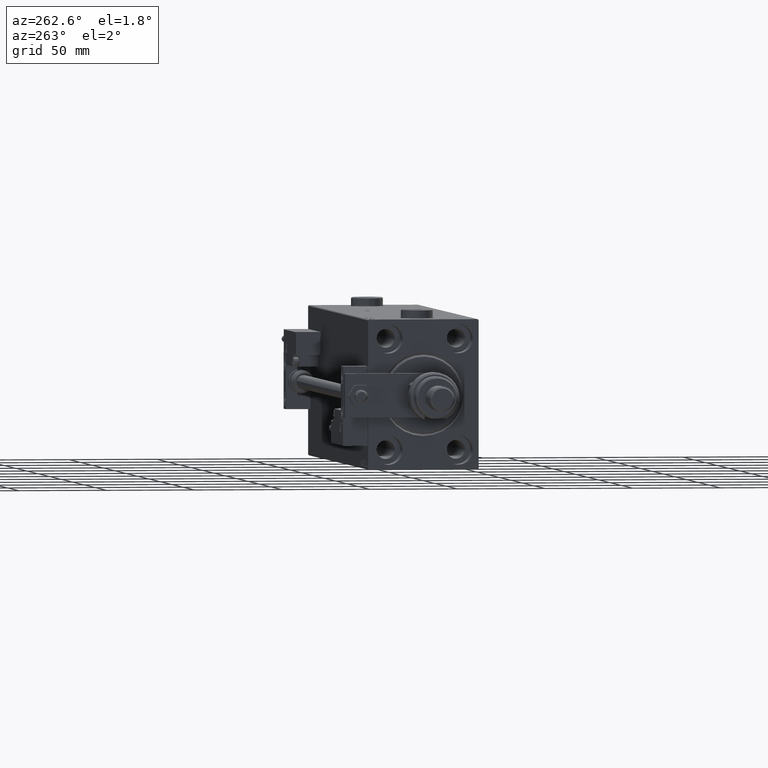
[diagram: clean part render]
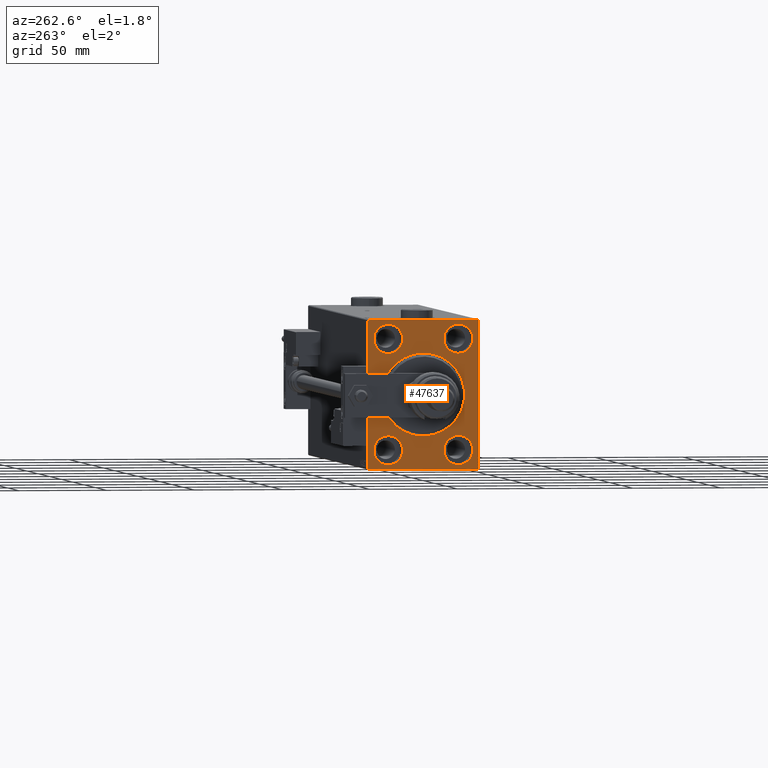
[diagram: same view with one face highlighted and labeled with its STEP entity id]
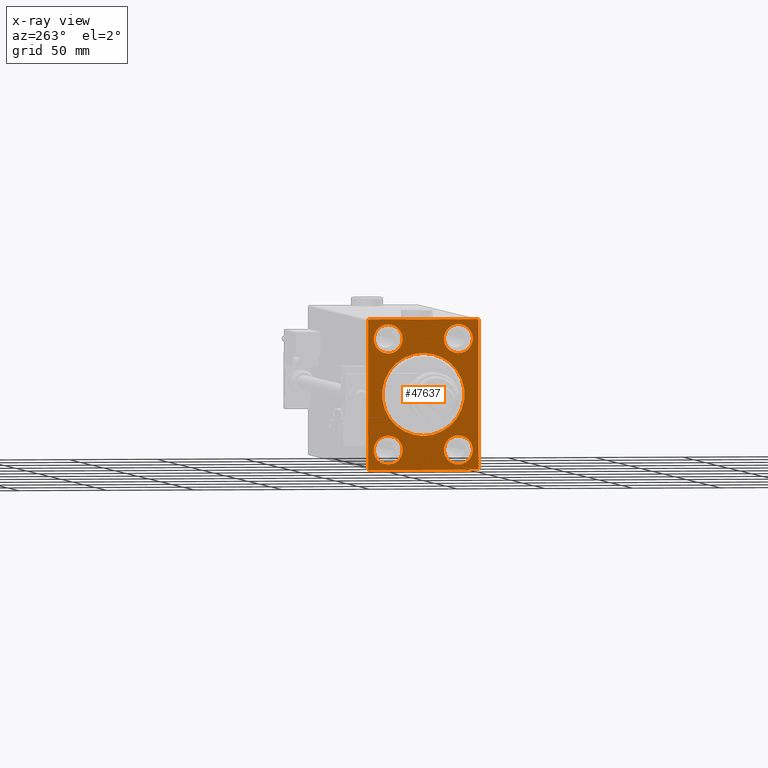
[diagram: x-ray of the same camera — body ghosted, the highlighted face saturated]
A machine part, auxiliary view. The second image highlights one B-rep face of the part: STEP entity #47637.
The next image is the same camera in x-ray: the body ghosted, the highlighted face saturated — about 0% of this face is hidden behind the body in this view.
In plain terms, the highlighted planar face has unit normal (1, 0, 0).
Its self-contained STEP definition (entity closure, byte-faithful):
#286 = ORIENTED_EDGE ( 'NONE', *, *, #8808, .F. ) ;
#410 = DIRECTION ( 'NONE',  ( 0.000000000000000000, 0.000000000000000000, -1.000000000000000000 ) ) ;
#532 = VERTEX_POINT ( 'NONE', #26069 ) ;
#922 = ORIENTED_EDGE ( 'NONE', *, *, #51934, .T. ) ;
#1520 = EDGE_CURVE ( 'NONE', #8703, #42177, #11086, .T. ) ;
#1560 = DIRECTION ( 'NONE',  ( -1.000000000000000000, 0.000000000000000000, 0.000000000000000000 ) ) ;
#1852 = EDGE_LOOP ( 'NONE', ( #50667, #25114 ) ) ;
#2113 = DIRECTION ( 'NONE',  ( -1.000000000000000000, 0.000000000000000000, 0.000000000000000000 ) ) ;
#2393 = VERTEX_POINT ( 'NONE', #3334 ) ;
#2554 = EDGE_LOOP ( 'NONE', ( #286, #15522 ) ) ;
#3334 = CARTESIAN_POINT ( 'NONE',  ( 0.000000000000000000, -19.99999999999999645, 23.25000000000000355 ) ) ;
#4461 = LINE ( 'NONE', #29740, #46378 ) ;
#4735 = ORIENTED_EDGE ( 'NONE', *, *, #20302, .F. ) ;
#4921 = VECTOR ( 'NONE', #33680, 1000.000000000000000 ) ;
#5977 = DIRECTION ( 'NONE',  ( 0.000000000000000000, 0.000000000000000000, -1.000000000000000000 ) ) ;
#6416 = DIRECTION ( 'NONE',  ( 0.000000000000000000, 0.000000000000000000, 1.000000000000000000 ) ) ;
#6716 = FACE_BOUND ( 'NONE', #11679, .T. ) ;
#6831 = DIRECTION ( 'NONE',  ( -1.000000000000000000, 0.000000000000000000, 0.000000000000000000 ) ) ;
#7261 = DIRECTION ( 'NONE',  ( 1.000000000000000000, 0.000000000000000000, 0.000000000000000000 ) ) ;
#7525 = CARTESIAN_POINT ( 'NONE',  ( 0.000000000000000000, 31.50000000000001421, -42.50000000000000711 ) ) ;
#8110 = DIRECTION ( 'NONE',  ( -1.000000000000000000, 0.000000000000000000, 0.000000000000000000 ) ) ;
#8406 = CARTESIAN_POINT ( 'NONE',  ( 0.000000000000000000, 0.000000000000000000, 0.000000000000000000 ) ) ;
#8474 = CARTESIAN_POINT ( 'NONE',  ( 0.000000000000000000, -20.00000000000000355, -39.74999999999999289 ) ) ;
#8703 = VERTEX_POINT ( 'NONE', #38984 ) ;
#8808 = EDGE_CURVE ( 'NONE', #25240, #16072, #53788, .T. ) ;
#8832 = CARTESIAN_POINT ( 'NONE',  ( 0.000000000000000000, -19.99999999999999645, 31.50000000000000000 ) ) ;
#9127 = VECTOR ( 'NONE', #25829, 1000.000000000000000 ) ;
#9532 = EDGE_CURVE ( 'NONE', #16072, #25240, #47688, .T. ) ;
#9657 = ORIENTED_EDGE ( 'NONE', *, *, #42791, .T. ) ;
#9817 = DIRECTION ( 'NONE',  ( 0.000000000000000000, 0.000000000000000000, 1.000000000000000000 ) ) ;
#11086 = CIRCLE ( 'NONE', #29391, 23.50000000000004619 ) ;
#11135 = CARTESIAN_POINT ( 'NONE',  ( 0.000000000000000000, 30.99999999999998579, -42.50000000000000711 ) ) ;
#11679 = EDGE_LOOP ( 'NONE', ( #28223, #47157 ) ) ;
#11831 = AXIS2_PLACEMENT_3D ( 'NONE', #30431, #1560, #9817 ) ;
#11919 = DIRECTION ( 'NONE',  ( 0.000000000000000000, -1.632680918566406300E-16, 1.000000000000000000 ) ) ;
#11950 = ORIENTED_EDGE ( 'NONE', *, *, #1520, .T. ) ;
#12266 = EDGE_CURVE ( 'NONE', #17935, #49722, #16098, .T. ) ;
#13168 = DIRECTION ( 'NONE',  ( 1.000000000000000000, 0.000000000000000000, 0.000000000000000000 ) ) ;
#13487 = DIRECTION ( 'NONE',  ( 0.000000000000000000, 0.000000000000000000, 1.000000000000000000 ) ) ;
#13886 = CIRCLE ( 'NONE', #48975, 8.250000000000000000 ) ;
#15225 = FACE_OUTER_BOUND ( 'NONE', #18866, .T. ) ;
#15522 = ORIENTED_EDGE ( 'NONE', *, *, #9532, .F. ) ;
#16072 = VERTEX_POINT ( 'NONE', #50246 ) ;
#16098 = LINE ( 'NONE', #49369, #29326 ) ;
#17152 = EDGE_CURVE ( 'NONE', #28021, #43437, #38154, .T. ) ;
#17236 = CIRCLE ( 'NONE', #47962, 8.249999999999992895 ) ;
#17386 = EDGE_CURVE ( 'NONE', #42177, #8703, #33792, .T. ) ;
#17868 = DIRECTION ( 'NONE',  ( -1.000000000000000000, 0.000000000000000000, 0.000000000000000000 ) ) ;
#17935 = VERTEX_POINT ( 'NONE', #37868 ) ;
#18866 = EDGE_LOOP ( 'NONE', ( #19171, #30527, #45164, #922, #32689, #9657, #4735, #50330 ) ) ;
#18925 = DIRECTION ( 'NONE',  ( -0.000000000000000000, 0.7071067811865671127, -0.7071067811865279218 ) ) ;
#19171 = ORIENTED_EDGE ( 'NONE', *, *, #20191, .F. ) ;
#19172 = CIRCLE ( 'NONE', #39343, 8.249999999999992895 ) ;
#19487 = ORIENTED_EDGE ( 'NONE', *, *, #38000, .F. ) ;
#20191 = EDGE_CURVE ( 'NONE', #38014, #49722, #26585, .T. ) ;
#20267 = DIRECTION ( 'NONE',  ( -1.000000000000000000, 0.000000000000000000, 0.000000000000000000 ) ) ;
#20302 = EDGE_CURVE ( 'NONE', #17935, #22200, #37819, .T. ) ;
#20400 = ORIENTED_EDGE ( 'NONE', *, *, #17152, .F. ) ;
#20627 = EDGE_CURVE ( 'NONE', #40886, #2393, #17236, .T. ) ;
#21535 = CARTESIAN_POINT ( 'NONE',  ( 0.000000000000000000, -20.00000000000000355, -31.49999999999999289 ) ) ;
#21807 = VERTEX_POINT ( 'NONE', #27135 ) ;
#21851 = AXIS2_PLACEMENT_3D ( 'NONE', #21535, #8110, #25934 ) ;
#22200 = VERTEX_POINT ( 'NONE', #11135 ) ;
#22442 = AXIS2_PLACEMENT_3D ( 'NONE', #27393, #2113, #44163 ) ;
#22709 = AXIS2_PLACEMENT_3D ( 'NONE', #49028, #7261, #23737 ) ;
#23310 = CARTESIAN_POINT ( 'NONE',  ( 0.000000000000000000, 20.00000000000000355, 31.50000000000000000 ) ) ;
#23737 = DIRECTION ( 'NONE',  ( 0.000000000000000000, 0.000000000000000000, -1.000000000000000000 ) ) ;
#24011 = FACE_BOUND ( 'NONE', #2554, .T. ) ;
#24390 = CARTESIAN_POINT ( 'NONE',  ( 0.000000000000000000, 20.00000000000000355, 31.50000000000000000 ) ) ;
#24999 = AXIS2_PLACEMENT_3D ( 'NONE', #8406, #29814, #410 ) ;
#25114 = ORIENTED_EDGE ( 'NONE', *, *, #45593, .F. ) ;
#25166 = VERTEX_POINT ( 'NONE', #27129 ) ;
#25240 = VERTEX_POINT ( 'NONE', #45548 ) ;
#25829 = DIRECTION ( 'NONE',  ( 0.000000000000000000, -1.000000000000000000, -2.202823461557850341E-16 ) ) ;
#25934 = DIRECTION ( 'NONE',  ( 0.000000000000000000, 0.000000000000000000, 1.000000000000000000 ) ) ;
#26069 = CARTESIAN_POINT ( 'NONE',  ( 0.000000000000000000, 30.99999999999991473, 42.50000000000000711 ) ) ;
#26161 = CARTESIAN_POINT ( 'NONE',  ( 0.000000000000000000, 2.877919977996285448E-15, -23.50000000000004619 ) ) ;
#26213 = CIRCLE ( 'NONE', #21851, 8.250000000000000000 ) ;
#26451 = EDGE_CURVE ( 'NONE', #25166, #52093, #26213, .T. ) ;
#26585 = LINE ( 'NONE', #52424, #28620 ) ;
#27129 = CARTESIAN_POINT ( 'NONE',  ( 0.000000000000000000, -20.00000000000000355, -23.24999999999999289 ) ) ;
#27135 = CARTESIAN_POINT ( 'NONE',  ( 0.000000000000000000, -30.99999999999997158, 42.49999999999999289 ) ) ;
#27393 = CARTESIAN_POINT ( 'NONE',  ( 0.000000000000000000, 19.99999999999999645, -31.49999999999999289 ) ) ;
#27443 = LINE ( 'NONE', #44492, #29026 ) ;
#28021 = VERTEX_POINT ( 'NONE', #29072 ) ;
#28223 = ORIENTED_EDGE ( 'NONE', *, *, #20627, .F. ) ;
#28620 = VECTOR ( 'NONE', #5977, 1000.000000000000000 ) ;
#29026 = VECTOR ( 'NONE', #18925, 1000.000000000000000 ) ;
#29072 = CARTESIAN_POINT ( 'NONE',  ( 0.000000000000000000, 19.99999999999999645, -23.24999999999999289 ) ) ;
#29326 = VECTOR ( 'NONE', #32323, 1000.000000000000114 ) ;
#29391 = AXIS2_PLACEMENT_3D ( 'NONE', #34051, #13168, #37911 ) ;
#29740 = CARTESIAN_POINT ( 'NONE',  ( 0.000000000000000000, -31.50000000000000000, 41.99999999999996447 ) ) ;
#29814 = DIRECTION ( 'NONE',  ( 1.000000000000000000, 0.000000000000000000, 0.000000000000000000 ) ) ;
#29966 = LINE ( 'NONE', #46733, #9127 ) ;
#29973 = EDGE_CURVE ( 'NONE', #532, #21807, #29966, .T. ) ;
#30431 = CARTESIAN_POINT ( 'NONE',  ( 0.000000000000000000, 19.99999999999999645, -31.49999999999999289 ) ) ;
#30527 = ORIENTED_EDGE ( 'NONE', *, *, #46767, .T. ) ;
#30683 = EDGE_LOOP ( 'NONE', ( #20400, #19487 ) ) ;
#31252 = CARTESIAN_POINT ( 'NONE',  ( 0.000000000000000000, -31.50000000000000000, 41.99999999999996447 ) ) ;
#31694 = DIRECTION ( 'NONE',  ( -1.000000000000000000, 0.000000000000000000, 0.000000000000000000 ) ) ;
#31965 = CARTESIAN_POINT ( 'NONE',  ( 0.000000000000000000, -20.00000000000000355, -31.49999999999999289 ) ) ;
#32323 = DIRECTION ( 'NONE',  ( -0.000000000000000000, -0.7071067811865474617, 0.7071067811865474617 ) ) ;
#32689 = ORIENTED_EDGE ( 'NONE', *, *, #47571, .F. ) ;
#33443 = DIRECTION ( 'NONE',  ( -1.000000000000000000, 0.000000000000000000, 0.000000000000000000 ) ) ;
#33680 = DIRECTION ( 'NONE',  ( 0.000000000000000000, 1.000000000000000000, 0.000000000000000000 ) ) ;
#33792 = CIRCLE ( 'NONE', #24999, 23.50000000000004619 ) ;
#34051 = CARTESIAN_POINT ( 'NONE',  ( 0.000000000000000000, 0.000000000000000000, 0.000000000000000000 ) ) ;
#34805 = VERTEX_POINT ( 'NONE', #49128 ) ;
#35013 = DIRECTION ( 'NONE',  ( 0.000000000000000000, -0.7071067811865474617, -0.7071067811865474617 ) ) ;
#35821 = VECTOR ( 'NONE', #35013, 1000.000000000000114 ) ;
#36217 = VERTEX_POINT ( 'NONE', #45632 ) ;
#37041 = DIRECTION ( 'NONE',  ( 0.000000000000000000, 0.000000000000000000, 1.000000000000000000 ) ) ;
#37819 = LINE ( 'NONE', #50192, #4921 ) ;
#37868 = CARTESIAN_POINT ( 'NONE',  ( 0.000000000000000000, -30.99999999999997158, -42.50000000000000711 ) ) ;
#37911 = DIRECTION ( 'NONE',  ( 0.000000000000000000, 0.000000000000000000, -1.000000000000000000 ) ) ;
#38000 = EDGE_CURVE ( 'NONE', #43437, #28021, #54089, .T. ) ;
#38014 = VERTEX_POINT ( 'NONE', #31252 ) ;
#38154 = CIRCLE ( 'NONE', #11831, 8.250000000000000000 ) ;
#38256 = DIRECTION ( 'NONE',  ( -0.000000000000000000, 0.7071067811865474617, 0.7071067811865474617 ) ) ;
#38520 = VECTOR ( 'NONE', #11919, 1000.000000000000000 ) ;
#38984 = CARTESIAN_POINT ( 'NONE',  ( 0.000000000000000000, 0.000000000000000000, 23.50000000000004619 ) ) ;
#39343 = AXIS2_PLACEMENT_3D ( 'NONE', #41981, #33443, #50220 ) ;
#40886 = VERTEX_POINT ( 'NONE', #48950 ) ;
#41320 = ORIENTED_EDGE ( 'NONE', *, *, #17386, .T. ) ;
#41959 = EDGE_LOOP ( 'NONE', ( #11950, #41320 ) ) ;
#41981 = CARTESIAN_POINT ( 'NONE',  ( 0.000000000000000000, -19.99999999999999645, 31.50000000000000000 ) ) ;
#42177 = VERTEX_POINT ( 'NONE', #26161 ) ;
#42791 = EDGE_CURVE ( 'NONE', #34805, #22200, #52345, .T. ) ;
#43098 = CARTESIAN_POINT ( 'NONE',  ( 0.000000000000000000, -31.50000000000000000, -41.99999999999997868 ) ) ;
#43437 = VERTEX_POINT ( 'NONE', #50580 ) ;
#44163 = DIRECTION ( 'NONE',  ( 0.000000000000000000, 0.000000000000000000, 1.000000000000000000 ) ) ;
#44358 = FACE_BOUND ( 'NONE', #30683, .T. ) ;
#44482 = DIRECTION ( 'NONE',  ( 0.000000000000000000, 0.000000000000000000, 1.000000000000000000 ) ) ;
#44492 = CARTESIAN_POINT ( 'NONE',  ( 0.000000000000000000, 30.99999999999991473, 42.50000000000000711 ) ) ;
#44635 = FACE_BOUND ( 'NONE', #41959, .T. ) ;
#45164 = ORIENTED_EDGE ( 'NONE', *, *, #29973, .F. ) ;
#45548 = CARTESIAN_POINT ( 'NONE',  ( 0.000000000000000000, 20.00000000000000355, 39.74999999999999289 ) ) ;
#45593 = EDGE_CURVE ( 'NONE', #52093, #25166, #13886, .T. ) ;
#45632 = CARTESIAN_POINT ( 'NONE',  ( 0.000000000000000000, 31.50000000000000000, 41.99999999999995737 ) ) ;
#46113 = EDGE_CURVE ( 'NONE', #2393, #40886, #19172, .T. ) ;
#46378 = VECTOR ( 'NONE', #38256, 1000.000000000000114 ) ;
#46733 = CARTESIAN_POINT ( 'NONE',  ( 0.000000000000000000, 31.50000000000000000, 42.50000000000000711 ) ) ;
#46767 = EDGE_CURVE ( 'NONE', #38014, #21807, #4461, .T. ) ;
#46792 = AXIS2_PLACEMENT_3D ( 'NONE', #23310, #6831, #44482 ) ;
#47157 = ORIENTED_EDGE ( 'NONE', *, *, #46113, .F. ) ;
#47571 = EDGE_CURVE ( 'NONE', #34805, #36217, #52610, .T. ) ;
#47637 = ADVANCED_FACE ( 'NONE', ( #44635, #44358, #6716, #24011, #52882, #15225 ), #48753, .F. ) ;
#47688 = CIRCLE ( 'NONE', #46792, 8.249999999999992895 ) ;
#47962 = AXIS2_PLACEMENT_3D ( 'NONE', #8832, #17868, #13487 ) ;
#48212 = CARTESIAN_POINT ( 'NONE',  ( 0.000000000000000000, 31.50000000000001421, -41.99999999999997868 ) ) ;
#48753 = PLANE ( 'NONE',  #22709 ) ;
#48950 = CARTESIAN_POINT ( 'NONE',  ( 0.000000000000000000, -19.99999999999999645, 39.74999999999999289 ) ) ;
#48975 = AXIS2_PLACEMENT_3D ( 'NONE', #31965, #31694, #6416 ) ;
#49028 = CARTESIAN_POINT ( 'NONE',  ( 0.000000000000000000, 0.000000000000000000, 0.000000000000000000 ) ) ;
#49128 = CARTESIAN_POINT ( 'NONE',  ( 0.000000000000000000, 31.50000000000001421, -41.99999999999997868 ) ) ;
#49369 = CARTESIAN_POINT ( 'NONE',  ( 0.000000000000000000, -30.99999999999997158, -42.50000000000000711 ) ) ;
#49722 = VERTEX_POINT ( 'NONE', #43098 ) ;
#50192 = CARTESIAN_POINT ( 'NONE',  ( 0.000000000000000000, -31.50000000000000000, -42.50000000000000711 ) ) ;
#50220 = DIRECTION ( 'NONE',  ( 0.000000000000000000, 0.000000000000000000, 1.000000000000000000 ) ) ;
#50246 = CARTESIAN_POINT ( 'NONE',  ( 0.000000000000000000, 20.00000000000000355, 23.25000000000000355 ) ) ;
#50330 = ORIENTED_EDGE ( 'NONE', *, *, #12266, .T. ) ;
#50580 = CARTESIAN_POINT ( 'NONE',  ( 0.000000000000000000, 19.99999999999999645, -39.74999999999999289 ) ) ;
#50667 = ORIENTED_EDGE ( 'NONE', *, *, #26451, .F. ) ;
#51934 = EDGE_CURVE ( 'NONE', #532, #36217, #27443, .T. ) ;
#52014 = AXIS2_PLACEMENT_3D ( 'NONE', #24390, #20267, #37041 ) ;
#52093 = VERTEX_POINT ( 'NONE', #8474 ) ;
#52345 = LINE ( 'NONE', #48212, #35821 ) ;
#52424 = CARTESIAN_POINT ( 'NONE',  ( 0.000000000000000000, -31.50000000000000000, 42.49999999999999289 ) ) ;
#52610 = LINE ( 'NONE', #7525, #38520 ) ;
#52882 = FACE_BOUND ( 'NONE', #1852, .T. ) ;
#53788 = CIRCLE ( 'NONE', #52014, 8.249999999999992895 ) ;
#54089 = CIRCLE ( 'NONE', #22442, 8.250000000000000000 ) ;